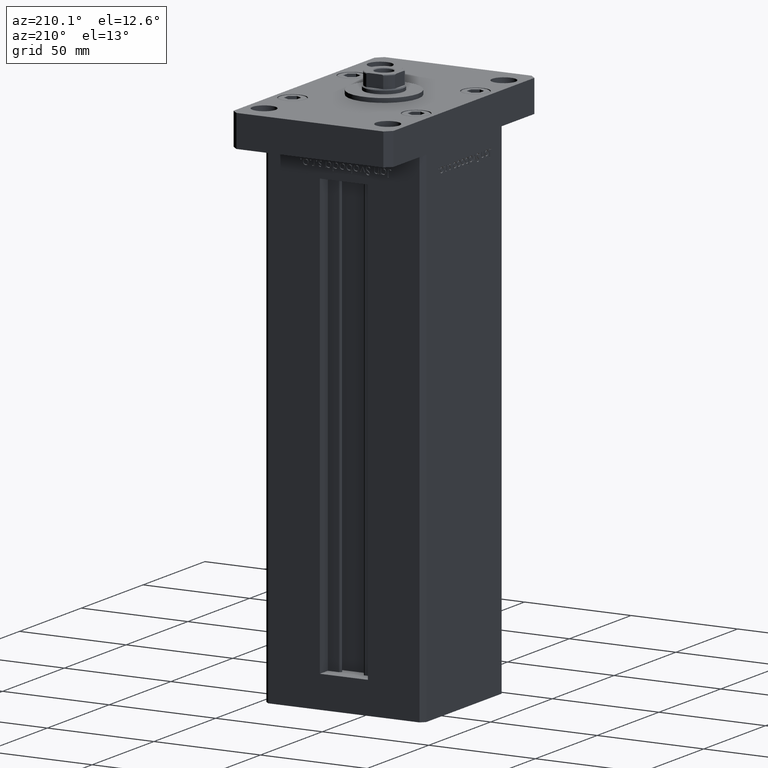
[diagram: clean part render]
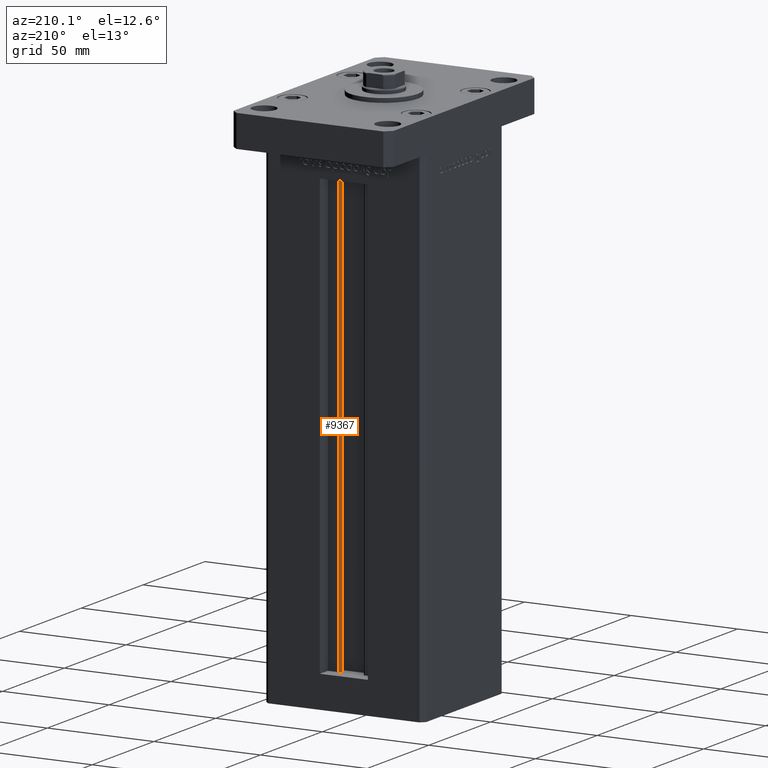
[diagram: same view with one face highlighted and labeled with its STEP entity id]
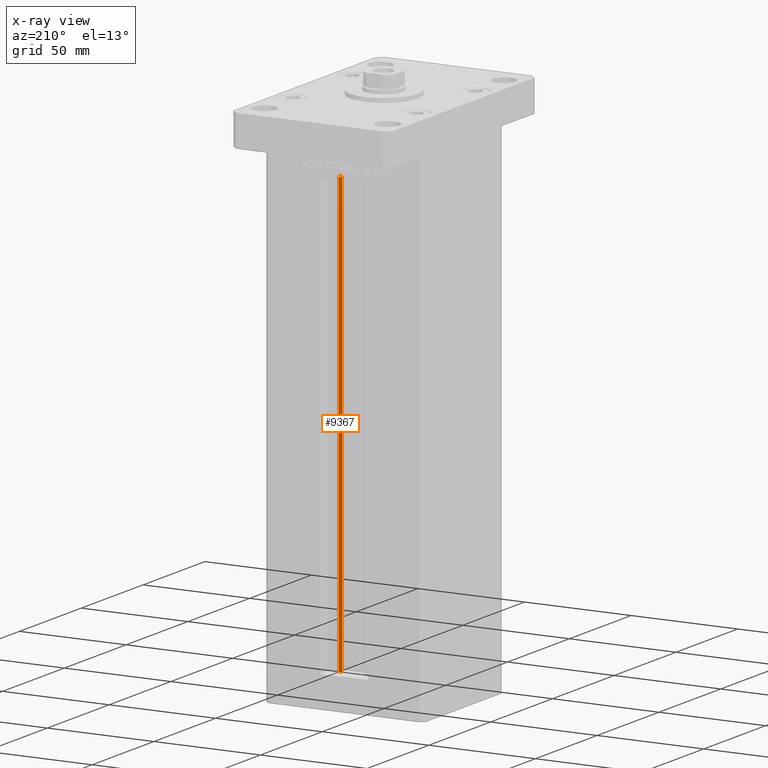
[diagram: x-ray of the same camera — body ghosted, the highlighted face saturated]
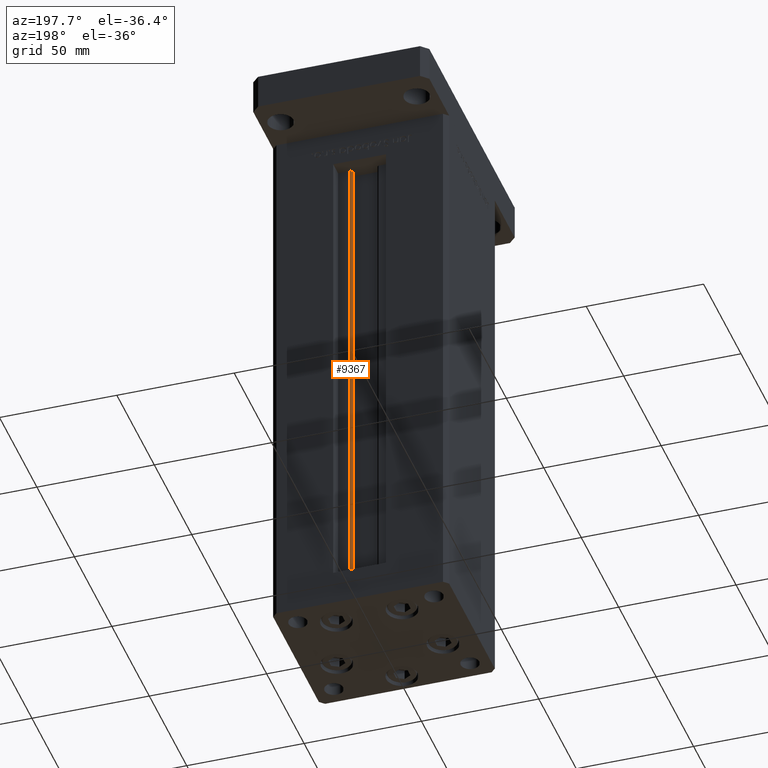
[diagram: same view with one face highlighted and labeled with its STEP entity id]
A machine part, auxiliary view. The second image highlights one B-rep face of the part: STEP entity #9367.
The next image is the same camera in x-ray: the body ghosted, the highlighted face saturated — about 0% of this face is hidden behind the body in this view.
A second angle (auxiliary view) of the same face is appended — the face is thin or edge-on in the first view.
In plain terms, the highlighted cylindrical surface (edge-blend (fillet) strip) has radius 0.9333 mm, axis along (0, 0, 1).
Its self-contained STEP definition (entity closure, byte-faithful):
#791 = CARTESIAN_POINT ( 'NONE',  ( 6.183333333334001480, 25.06666666666599141, 0.000000000000000000 ) ) ;
#1156 = VERTEX_POINT ( 'NONE', #47247 ) ;
#1343 = EDGE_CURVE ( 'NONE', #18611, #40408, #53163, .T. ) ;
#4578 = FACE_OUTER_BOUND ( 'NONE', #17473, .T. ) ;
#7075 = ORIENTED_EDGE ( 'NONE', *, *, #20382, .T. ) ;
#8641 = CYLINDRICAL_SURFACE ( 'NONE', #33714, 0.9333333333340008142 ) ;
#9138 = LINE ( 'NONE', #34370, #49540 ) ;
#9367 = ADVANCED_FACE ( 'NONE', ( #4578 ), #8641, .T. ) ;
#10180 = VECTOR ( 'NONE', #16040, 1000.000000000000000 ) ;
#14281 = DIRECTION ( 'NONE',  ( -0.000000000000000000, -0.000000000000000000, 1.000000000000000000 ) ) ;
#16040 = DIRECTION ( 'NONE',  ( -0.000000000000000000, -0.000000000000000000, 1.000000000000000000 ) ) ;
#16571 = CARTESIAN_POINT ( 'NONE',  ( 6.183333333334001480, 25.99999999999999289, 0.000000000000000000 ) ) ;
#17047 = DIRECTION ( 'NONE',  ( -0.000000000000000000, -0.000000000000000000, 1.000000000000000000 ) ) ;
#17473 = EDGE_LOOP ( 'NONE', ( #38163, #27549, #7075, #47929 ) ) ;
#18611 = VERTEX_POINT ( 'NONE', #38518 ) ;
#20116 = AXIS2_PLACEMENT_3D ( 'NONE', #45678, #33485, #24552 ) ;
#20382 = EDGE_CURVE ( 'NONE', #27128, #1156, #9138, .T. ) ;
#20546 = EDGE_CURVE ( 'NONE', #1156, #40408, #31391, .T. ) ;
#21116 = DIRECTION ( 'NONE',  ( 1.000000000000000000, 0.000000000000000000, 0.000000000000000000 ) ) ;
#21224 = CIRCLE ( 'NONE', #27264, 0.9333333333340008142 ) ;
#24552 = DIRECTION ( 'NONE',  ( 1.000000000000000000, 0.000000000000000000, 0.000000000000000000 ) ) ;
#25666 = CARTESIAN_POINT ( 'NONE',  ( 6.183333333334001480, 25.99999999999999289, 206.0000000000000000 ) ) ;
#27128 = VERTEX_POINT ( 'NONE', #38301 ) ;
#27264 = AXIS2_PLACEMENT_3D ( 'NONE', #40875, #52540, #28929 ) ;
#27549 = ORIENTED_EDGE ( 'NONE', *, *, #52198, .F. ) ;
#28929 = DIRECTION ( 'NONE',  ( 1.000000000000000000, 0.000000000000000000, 0.000000000000000000 ) ) ;
#31391 = CIRCLE ( 'NONE', #20116, 0.9333333333340008142 ) ;
#33485 = DIRECTION ( 'NONE',  ( 0.000000000000000000, 0.000000000000000000, -1.000000000000000000 ) ) ;
#33714 = AXIS2_PLACEMENT_3D ( 'NONE', #791, #17047, #21116 ) ;
#34370 = CARTESIAN_POINT ( 'NONE',  ( 5.375042956467947164, 24.59999999999899245, 0.000000000000000000 ) ) ;
#38163 = ORIENTED_EDGE ( 'NONE', *, *, #1343, .F. ) ;
#38301 = CARTESIAN_POINT ( 'NONE',  ( 5.375042956467947164, 24.59999999999899245, 0.000000000000000000 ) ) ;
#38518 = CARTESIAN_POINT ( 'NONE',  ( 6.183333333334001480, 25.99999999999999289, 0.000000000000000000 ) ) ;
#40408 = VERTEX_POINT ( 'NONE', #25666 ) ;
#40875 = CARTESIAN_POINT ( 'NONE',  ( 6.183333333334001480, 25.06666666666599141, 0.000000000000000000 ) ) ;
#45678 = CARTESIAN_POINT ( 'NONE',  ( 6.183333333334001480, 25.06666666666599141, 206.0000000000000000 ) ) ;
#47247 = CARTESIAN_POINT ( 'NONE',  ( 5.375042956467948052, 24.59999999999899245, 206.0000000000000000 ) ) ;
#47929 = ORIENTED_EDGE ( 'NONE', *, *, #20546, .T. ) ;
#49540 = VECTOR ( 'NONE', #14281, 1000.000000000000000 ) ;
#52198 = EDGE_CURVE ( 'NONE', #27128, #18611, #21224, .T. ) ;
#52540 = DIRECTION ( 'NONE',  ( -0.000000000000000000, -0.000000000000000000, -1.000000000000000000 ) ) ;
#53163 = LINE ( 'NONE', #16571, #10180 ) ;